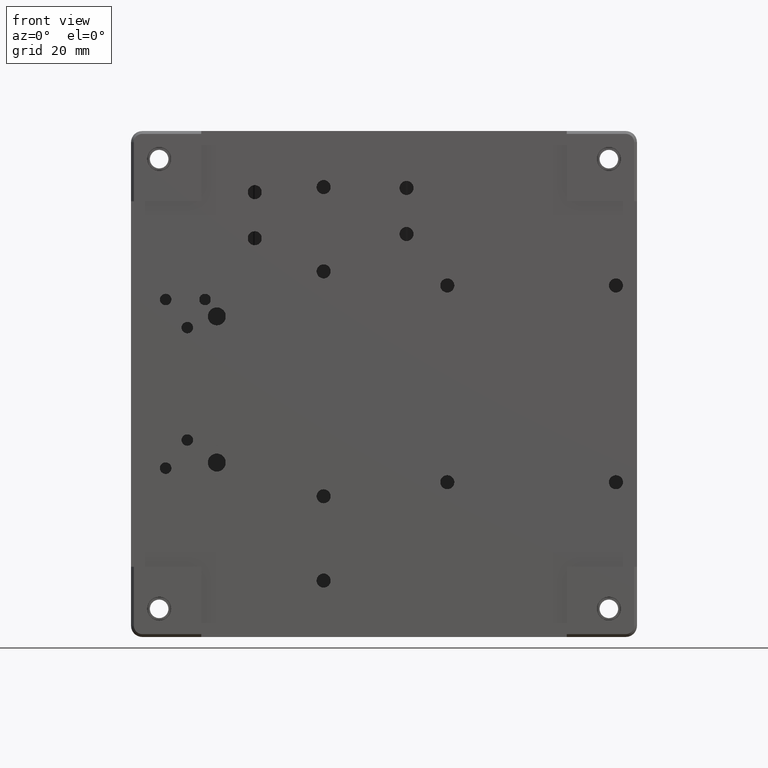
[diagram: clean part render]
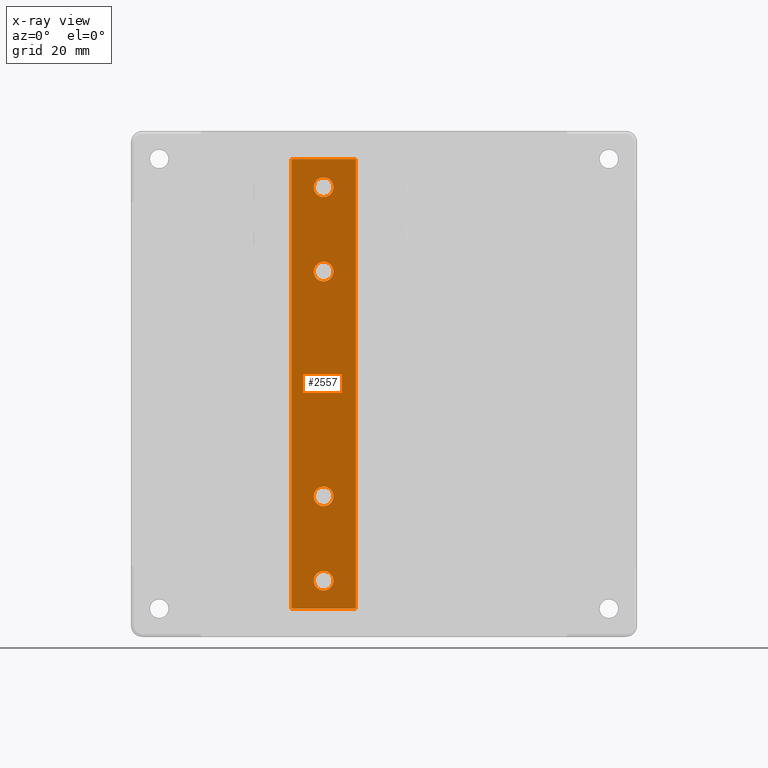
[diagram: x-ray — body ghosted, one internal face saturated and labeled with its STEP entity id]
A machine part, front view, then the same camera in x-ray: the body is ghosted and one INTERNAL B-rep face — a face not visible from any outside direction — is saturated and labeled: STEP entity #2557.
In plain terms, the highlighted planar face has unit normal (0, -1, 0).
Its self-contained STEP definition (entity closure, byte-faithful):
#279 = VERTEX_POINT ( 'NONE', #22562 ) ;
#1416 = DIRECTION ( 'NONE',  ( 0.0000000000000000000, 1.000000000000000000, 0.0000000000000000000 ) ) ;
#1542 = LINE ( 'NONE', #8505, #23334 ) ;
#1576 = CARTESIAN_POINT ( 'NONE',  ( -5.000000000000003600, -13.00000000000000200, 39.98400000000000200 ) ) ;
#1591 = CARTESIAN_POINT ( 'NONE',  ( -16.48400000000000200, -13.00000000000000200, 40.00000000000000000 ) ) ;
#1771 = LINE ( 'NONE', #28404, #17231 ) ;
#1899 = ORIENTED_EDGE ( 'NONE', *, *, #7546, .T. ) ;
#1951 = CARTESIAN_POINT ( 'NONE',  ( -10.75000000000000000, -13.00000000000000200, -35.00000000000000000 ) ) ;
#2041 = CIRCLE ( 'NONE', #9888, 1.749999999999999800 ) ;
#2287 = DIRECTION ( 'NONE',  ( -0.0000000000000000000, -0.0000000000000000000, -1.000000000000000000 ) ) ;
#2557 = ADVANCED_FACE ( 'NONE', ( #34562, #18070, #2587, #9840, #26347 ), #31740, .T. ) ;
#2587 = FACE_BOUND ( 'NONE', #25861, .T. ) ;
#2992 = CARTESIAN_POINT ( 'NONE',  ( -12.50000000000000000, -13.00000000000000200, -35.00000000000000000 ) ) ;
#3596 = EDGE_CURVE ( 'NONE', #37200, #11621, #18000, .T. ) ;
#3654 = EDGE_CURVE ( 'NONE', #20124, #8307, #1542, .T. ) ;
#3812 = ORIENTED_EDGE ( 'NONE', *, *, #3596, .T. ) ;
#3996 = EDGE_CURVE ( 'NONE', #11621, #20124, #6341, .T. ) ;
#4034 = VERTEX_POINT ( 'NONE', #13454 ) ;
#4107 = DIRECTION ( 'NONE',  ( 0.0000000000000000000, 1.000000000000000000, 0.0000000000000000000 ) ) ;
#4250 = LINE ( 'NONE', #31063, #36238 ) ;
#4761 = EDGE_CURVE ( 'NONE', #12336, #4034, #33031, .T. ) ;
#5039 = DIRECTION ( 'NONE',  ( -1.000000000000000000, 0.0000000000000000000, 0.0000000000000000000 ) ) ;
#5289 = EDGE_CURVE ( 'NONE', #38851, #34794, #27679, .T. ) ;
#5900 = VERTEX_POINT ( 'NONE', #28253 ) ;
#5928 = ORIENTED_EDGE ( 'NONE', *, *, #19266, .T. ) ;
#6074 = VECTOR ( 'NONE', #25474, 1000.000000000000000 ) ;
#6207 = EDGE_LOOP ( 'NONE', ( #14390, #32667 ) ) ;
#6341 = LINE ( 'NONE', #10232, #22830 ) ;
#6960 = AXIS2_PLACEMENT_3D ( 'NONE', #26888, #8322, #29990 ) ;
#7181 = CARTESIAN_POINT ( 'NONE',  ( -5.016000000000000000, -13.00000000000000200, -40.00000000000000000 ) ) ;
#7242 = ORIENTED_EDGE ( 'NONE', *, *, #39973, .T. ) ;
#7546 = EDGE_CURVE ( 'NONE', #24870, #16249, #39095, .T. ) ;
#7751 = CIRCLE ( 'NONE', #36916, 1.749999999999999800 ) ;
#8307 = VERTEX_POINT ( 'NONE', #7181 ) ;
#8322 = DIRECTION ( 'NONE',  ( 0.0000000000000000000, 1.000000000000000000, 0.0000000000000000000 ) ) ;
#8505 = CARTESIAN_POINT ( 'NONE',  ( -16.85000000000000100, -13.00000000000000200, -40.00000000000000000 ) ) ;
#8509 = EDGE_LOOP ( 'NONE', ( #17681, #21963 ) ) ;
#9702 = AXIS2_PLACEMENT_3D ( 'NONE', #22648, #4107, #25791 ) ;
#9840 = FACE_BOUND ( 'NONE', #6207, .T. ) ;
#9888 = AXIS2_PLACEMENT_3D ( 'NONE', #11007, #32670, #14098 ) ;
#10036 = VERTEX_POINT ( 'NONE', #1576 ) ;
#10153 = CARTESIAN_POINT ( 'NONE',  ( -10.75000000000000000, -13.00000000000000200, -20.00000000000000000 ) ) ;
#10232 = CARTESIAN_POINT ( 'NONE',  ( -16.85000000000000100, -13.00000000000000200, -39.63400000000000000 ) ) ;
#11007 = CARTESIAN_POINT ( 'NONE',  ( -10.75000000000000000, -13.00000000000000200, 34.99999999999999300 ) ) ;
#11223 = CARTESIAN_POINT ( 'NONE',  ( -12.50000000000000000, -13.00000000000000200, 34.99999999999999300 ) ) ;
#11621 = VERTEX_POINT ( 'NONE', #37889 ) ;
#11770 = VECTOR ( 'NONE', #18423, 1000.000000000000100 ) ;
#11913 = EDGE_CURVE ( 'NONE', #279, #32628, #31758, .T. ) ;
#12336 = VERTEX_POINT ( 'NONE', #24770 ) ;
#13247 = DIRECTION ( 'NONE',  ( -1.000000000000000000, 0.0000000000000000000, 0.0000000000000000000 ) ) ;
#13454 = CARTESIAN_POINT ( 'NONE',  ( -12.50000000000000000, -13.00000000000000200, 19.99999999999999600 ) ) ;
#13487 = CARTESIAN_POINT ( 'NONE',  ( -5.000000000000000900, -13.00000000000000200, -39.98400000000000900 ) ) ;
#13961 = ORIENTED_EDGE ( 'NONE', *, *, #31528, .T. ) ;
#14098 = DIRECTION ( 'NONE',  ( -1.000000000000000000, 0.0000000000000000000, 0.0000000000000000000 ) ) ;
#14390 = ORIENTED_EDGE ( 'NONE', *, *, #37667, .T. ) ;
#14579 = CARTESIAN_POINT ( 'NONE',  ( -16.50000000000000000, -13.00000000000000200, -40.00000000000000000 ) ) ;
#14990 = DIRECTION ( 'NONE',  ( 1.000000000000000000, 0.0000000000000000000, 0.0000000000000000000 ) ) ;
#15255 = CARTESIAN_POINT ( 'NONE',  ( -10.75000000000000000, -13.00000000000000200, 34.99999999999999300 ) ) ;
#16044 = DIRECTION ( 'NONE',  ( 0.7071067811865474600, 0.0000000000000000000, 0.7071067811865474600 ) ) ;
#16249 = VERTEX_POINT ( 'NONE', #11223 ) ;
#17147 = CARTESIAN_POINT ( 'NONE',  ( -12.50000000000000000, -13.00000000000000200, -20.00000000000000000 ) ) ;
#17231 = VECTOR ( 'NONE', #16044, 1000.000000000000100 ) ;
#17603 = ORIENTED_EDGE ( 'NONE', *, *, #3654, .T. ) ;
#17681 = ORIENTED_EDGE ( 'NONE', *, *, #25359, .T. ) ;
#17731 = CARTESIAN_POINT ( 'NONE',  ( -10.75000000000000000, -13.00000000000000200, -20.00000000000000000 ) ) ;
#18000 = LINE ( 'NONE', #14579, #33526 ) ;
#18070 = FACE_BOUND ( 'NONE', #8509, .T. ) ;
#18362 = DIRECTION ( 'NONE',  ( -1.000000000000000000, 0.0000000000000000000, 0.0000000000000000000 ) ) ;
#18365 = VERTEX_POINT ( 'NONE', #13487 ) ;
#18423 = DIRECTION ( 'NONE',  ( -0.7071067811865474600, 0.0000000000000000000, 0.7071067811865474600 ) ) ;
#18748 = VECTOR ( 'NONE', #37637, 1000.000000000000100 ) ;
#19266 = EDGE_CURVE ( 'NONE', #10036, #279, #28256, .T. ) ;
#19559 = CIRCLE ( 'NONE', #20660, 1.749999999999999800 ) ;
#19909 = CARTESIAN_POINT ( 'NONE',  ( -10.75000000000000000, -13.00000000000000200, -35.00000000000000000 ) ) ;
#20124 = VERTEX_POINT ( 'NONE', #27798 ) ;
#20660 = AXIS2_PLACEMENT_3D ( 'NONE', #1951, #23608, #5039 ) ;
#20831 = DIRECTION ( 'NONE',  ( -1.000000000000000000, 0.0000000000000000000, 0.0000000000000000000 ) ) ;
#21115 = CARTESIAN_POINT ( 'NONE',  ( -9.000000000000001800, -13.00000000000000200, -20.00000000000000000 ) ) ;
#21544 = CARTESIAN_POINT ( 'NONE',  ( -4.650000000000001200, -13.00000000000000200, 39.63399999999999300 ) ) ;
#21963 = ORIENTED_EDGE ( 'NONE', *, *, #5289, .T. ) ;
#21974 = AXIS2_PLACEMENT_3D ( 'NONE', #15255, #36923, #18362 ) ;
#22562 = CARTESIAN_POINT ( 'NONE',  ( -5.016000000000002700, -13.00000000000000200, 40.00000000000000000 ) ) ;
#22648 = CARTESIAN_POINT ( 'NONE',  ( -10.75000000000000000, -13.00000000000000200, 19.99999999999999600 ) ) ;
#22830 = VECTOR ( 'NONE', #35033, 1000.000000000000100 ) ;
#22986 = CARTESIAN_POINT ( 'NONE',  ( -16.50000000000000000, -13.00000000000000200, 39.98400000000000200 ) ) ;
#23072 = DIRECTION ( 'NONE',  ( -1.000000000000000000, 0.0000000000000000000, 0.0000000000000000000 ) ) ;
#23334 = VECTOR ( 'NONE', #14990, 1000.000000000000000 ) ;
#23608 = DIRECTION ( 'NONE',  ( 0.0000000000000000000, 1.000000000000000000, 0.0000000000000000000 ) ) ;
#24770 = CARTESIAN_POINT ( 'NONE',  ( -9.000000000000001800, -13.00000000000000200, 19.99999999999999600 ) ) ;
#24870 = VERTEX_POINT ( 'NONE', #39165 ) ;
#25359 = EDGE_CURVE ( 'NONE', #34794, #38851, #7751, .T. ) ;
#25474 = DIRECTION ( 'NONE',  ( -1.000000000000000000, -0.0000000000000000000, -0.0000000000000000000 ) ) ;
#25654 = ORIENTED_EDGE ( 'NONE', *, *, #11913, .T. ) ;
#25791 = DIRECTION ( 'NONE',  ( -1.000000000000000000, 0.0000000000000000000, 0.0000000000000000000 ) ) ;
#25861 = EDGE_LOOP ( 'NONE', ( #13961, #1899 ) ) ;
#26347 = FACE_OUTER_BOUND ( 'NONE', #35480, .T. ) ;
#26888 = CARTESIAN_POINT ( 'NONE',  ( -10.75000000000000000, -13.00000000000000200, 19.99999999999999600 ) ) ;
#27028 = LINE ( 'NONE', #34553, #18748 ) ;
#27583 = EDGE_CURVE ( 'NONE', #32628, #37200, #27028, .T. ) ;
#27679 = CIRCLE ( 'NONE', #34399, 1.749999999999999800 ) ;
#27798 = CARTESIAN_POINT ( 'NONE',  ( -16.48399999999999800, -13.00000000000000200, -40.00000000000000000 ) ) ;
#27910 = ORIENTED_EDGE ( 'NONE', *, *, #29215, .T. ) ;
#28253 = CARTESIAN_POINT ( 'NONE',  ( -9.000000000000001800, -13.00000000000000200, -35.00000000000000000 ) ) ;
#28256 = LINE ( 'NONE', #21544, #11770 ) ;
#28345 = AXIS2_PLACEMENT_3D ( 'NONE', #34878, #28629, #37932 ) ;
#28379 = ORIENTED_EDGE ( 'NONE', *, *, #35507, .T. ) ;
#28404 = CARTESIAN_POINT ( 'NONE',  ( -5.016000000000000900, -13.00000000000000200, -40.00000000000000000 ) ) ;
#28629 = DIRECTION ( 'NONE',  ( 0.0000000000000000000, -1.000000000000000000, 0.0000000000000000000 ) ) ;
#29215 = EDGE_CURVE ( 'NONE', #8307, #18365, #1771, .T. ) ;
#29990 = DIRECTION ( 'NONE',  ( -1.000000000000000000, 0.0000000000000000000, 0.0000000000000000000 ) ) ;
#31063 = CARTESIAN_POINT ( 'NONE',  ( -5.000000000000000900, -13.00000000000000200, -40.00000000000000000 ) ) ;
#31211 = ORIENTED_EDGE ( 'NONE', *, *, #4761, .T. ) ;
#31370 = EDGE_LOOP ( 'NONE', ( #7242, #31211 ) ) ;
#31520 = EDGE_CURVE ( 'NONE', #5900, #38935, #38618, .T. ) ;
#31528 = EDGE_CURVE ( 'NONE', #16249, #24870, #2041, .T. ) ;
#31740 = PLANE ( 'NONE',  #28345 ) ;
#31758 = LINE ( 'NONE', #37759, #6074 ) ;
#31827 = DIRECTION ( 'NONE',  ( 0.0000000000000000000, 1.000000000000000000, 0.0000000000000000000 ) ) ;
#32462 = ORIENTED_EDGE ( 'NONE', *, *, #27583, .T. ) ;
#32628 = VERTEX_POINT ( 'NONE', #1591 ) ;
#32667 = ORIENTED_EDGE ( 'NONE', *, *, #31520, .T. ) ;
#32670 = DIRECTION ( 'NONE',  ( 0.0000000000000000000, 1.000000000000000000, 0.0000000000000000000 ) ) ;
#33031 = CIRCLE ( 'NONE', #9702, 1.749999999999999800 ) ;
#33526 = VECTOR ( 'NONE', #2287, 1000.000000000000000 ) ;
#34310 = DIRECTION ( 'NONE',  ( 0.0000000000000000000, 0.0000000000000000000, 1.000000000000000000 ) ) ;
#34399 = AXIS2_PLACEMENT_3D ( 'NONE', #10153, #31827, #13247 ) ;
#34553 = CARTESIAN_POINT ( 'NONE',  ( -16.48400000000000200, -13.00000000000000200, 40.00000000000000000 ) ) ;
#34562 = FACE_BOUND ( 'NONE', #31370, .T. ) ;
#34688 = ORIENTED_EDGE ( 'NONE', *, *, #3996, .T. ) ;
#34794 = VERTEX_POINT ( 'NONE', #17147 ) ;
#34878 = CARTESIAN_POINT ( 'NONE',  ( -16.85000000000000100, -13.00000000000000200, -40.00000000000000000 ) ) ;
#35033 = DIRECTION ( 'NONE',  ( 0.7071067811865474600, 0.0000000000000000000, -0.7071067811865474600 ) ) ;
#35480 = EDGE_LOOP ( 'NONE', ( #17603, #27910, #28379, #5928, #25654, #32462, #3812, #34688 ) ) ;
#35507 = EDGE_CURVE ( 'NONE', #18365, #10036, #4250, .T. ) ;
#35686 = CIRCLE ( 'NONE', #6960, 1.749999999999999800 ) ;
#36238 = VECTOR ( 'NONE', #34310, 1000.000000000000000 ) ;
#36916 = AXIS2_PLACEMENT_3D ( 'NONE', #17731, #39380, #20831 ) ;
#36923 = DIRECTION ( 'NONE',  ( 0.0000000000000000000, 1.000000000000000000, 0.0000000000000000000 ) ) ;
#37200 = VERTEX_POINT ( 'NONE', #22986 ) ;
#37637 = DIRECTION ( 'NONE',  ( -0.7071067811865474600, 0.0000000000000000000, -0.7071067811865474600 ) ) ;
#37667 = EDGE_CURVE ( 'NONE', #38935, #5900, #19559, .T. ) ;
#37759 = CARTESIAN_POINT ( 'NONE',  ( -16.85000000000000100, -13.00000000000000200, 40.00000000000000000 ) ) ;
#37889 = CARTESIAN_POINT ( 'NONE',  ( -16.50000000000000000, -13.00000000000000200, -39.98400000000000200 ) ) ;
#37932 = DIRECTION ( 'NONE',  ( 1.000000000000000000, 0.0000000000000000000, 0.0000000000000000000 ) ) ;
#38618 = CIRCLE ( 'NONE', #39709, 1.749999999999999800 ) ;
#38851 = VERTEX_POINT ( 'NONE', #21115 ) ;
#38935 = VERTEX_POINT ( 'NONE', #2992 ) ;
#39095 = CIRCLE ( 'NONE', #21974, 1.749999999999999800 ) ;
#39165 = CARTESIAN_POINT ( 'NONE',  ( -9.000000000000001800, -13.00000000000000200, 34.99999999999999300 ) ) ;
#39380 = DIRECTION ( 'NONE',  ( 0.0000000000000000000, 1.000000000000000000, 0.0000000000000000000 ) ) ;
#39709 = AXIS2_PLACEMENT_3D ( 'NONE', #19909, #1416, #23072 ) ;
#39973 = EDGE_CURVE ( 'NONE', #4034, #12336, #35686, .T. ) ;